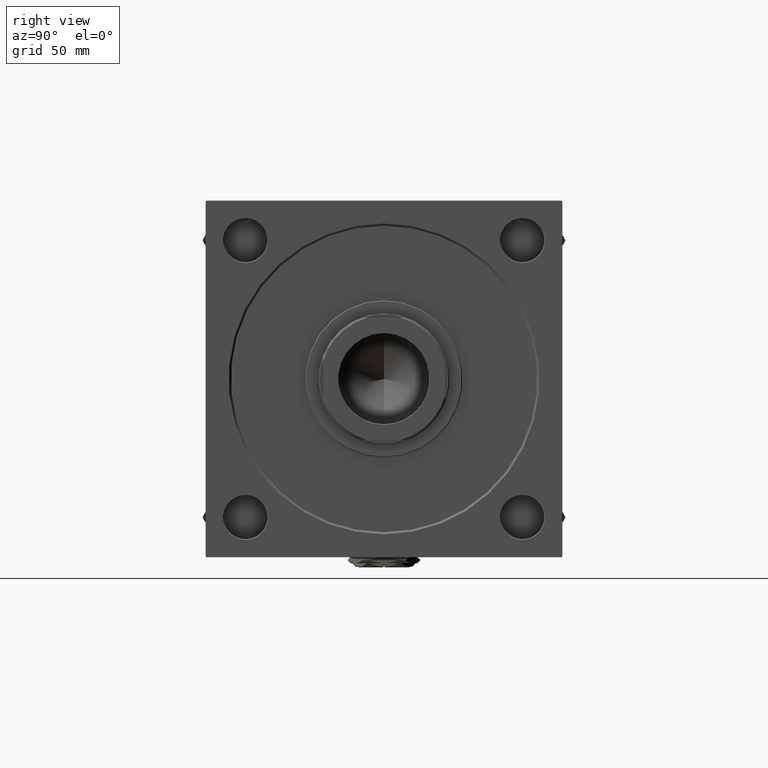
[diagram: clean part render]
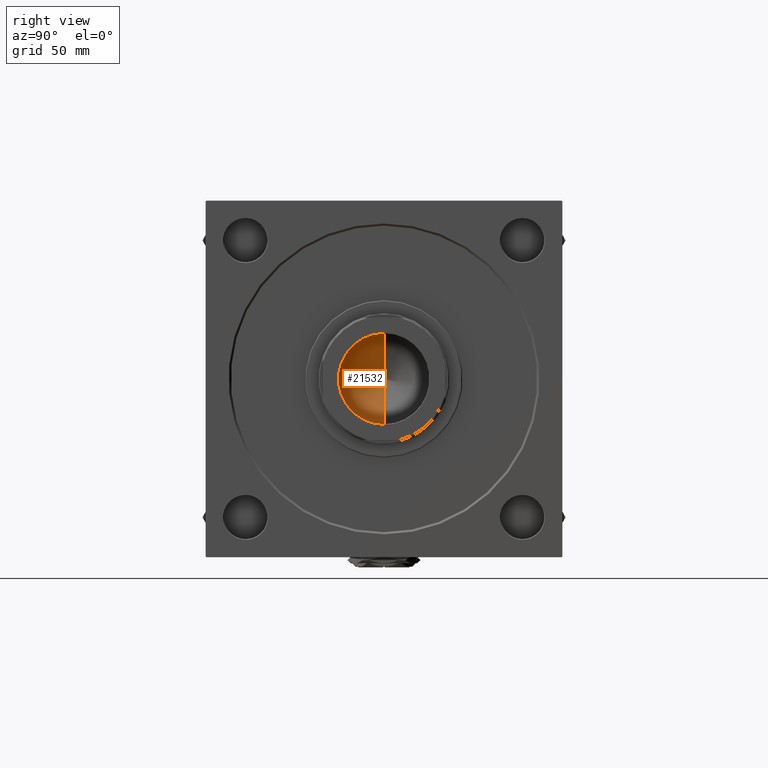
[diagram: same view with one face highlighted and labeled with its STEP entity id]
A machine part, right view. The second image highlights one B-rep face of the part: STEP entity #21532.
In plain terms, the highlighted conical surface has half-angle 59 deg.
Its self-contained STEP definition (entity closure, byte-faithful):
#1337 = CIRCLE ( 'NONE', #30146, 31.24999999999998579 ) ;
#1542 = DIRECTION ( 'NONE',  ( 0.8571673007021118895, 0.000000000000000000, 0.5150380749100549327 ) ) ;
#2824 = VERTEX_POINT ( 'NONE', #48936 ) ;
#4475 = VECTOR ( 'NONE', #12048, 1000.000000000000000 ) ;
#5365 = EDGE_CURVE ( 'NONE', #2824, #46428, #7535, .T. ) ;
#7168 = DIRECTION ( 'NONE',  ( -0.000000000000000000, -0.000000000000000000, 1.000000000000000000 ) ) ;
#7535 = LINE ( 'NONE', #48181, #4475 ) ;
#11805 = EDGE_LOOP ( 'NONE', ( #22063, #42341, #26395 ) ) ;
#12048 = DIRECTION ( 'NONE',  ( -0.8571673007021118895, 1.049727191138618079E-16, 0.5150380749100549327 ) ) ;
#15146 = FACE_OUTER_BOUND ( 'NONE', #11805, .T. ) ;
#17737 = CARTESIAN_POINT ( 'NONE',  ( 31.24999999999998579, 0.000000000000000000, 155.0000000000000000 ) ) ;
#21532 = ADVANCED_FACE ( 'NONE', ( #15146 ), #34632, .F. ) ;
#21676 = EDGE_CURVE ( 'NONE', #2824, #41871, #37166, .T. ) ;
#22063 = ORIENTED_EDGE ( 'NONE', *, *, #5365, .F. ) ;
#23378 = DIRECTION ( 'NONE',  ( 1.000000000000000000, 0.000000000000000000, 0.000000000000000000 ) ) ;
#26395 = ORIENTED_EDGE ( 'NONE', *, *, #39772, .T. ) ;
#27360 = CARTESIAN_POINT ( 'NONE',  ( 0.000000000000000000, 0.000000000000000000, 155.0000000000000000 ) ) ;
#27365 = CARTESIAN_POINT ( 'NONE',  ( 31.24999999999998579, 0.000000000000000000, 155.0000000000000000 ) ) ;
#30146 = AXIS2_PLACEMENT_3D ( 'NONE', #35077, #51030, #47570 ) ;
#30647 = CARTESIAN_POINT ( 'NONE',  ( -31.24999999999998579, 3.827021247335477324E-15, 155.0000000000000000 ) ) ;
#34632 = CONICAL_SURFACE ( 'NONE', #44840, 31.24999999999998579, 1.029744258676653645 ) ;
#35077 = CARTESIAN_POINT ( 'NONE',  ( 0.000000000000000000, 0.000000000000000000, 155.0000000000000000 ) ) ;
#37166 = LINE ( 'NONE', #17737, #42277 ) ;
#39772 = EDGE_CURVE ( 'NONE', #41871, #46428, #1337, .T. ) ;
#41871 = VERTEX_POINT ( 'NONE', #27365 ) ;
#42277 = VECTOR ( 'NONE', #1542, 1000.000000000000000 ) ;
#42341 = ORIENTED_EDGE ( 'NONE', *, *, #21676, .T. ) ;
#44840 = AXIS2_PLACEMENT_3D ( 'NONE', #27360, #7168, #23378 ) ;
#46428 = VERTEX_POINT ( 'NONE', #30647 ) ;
#47570 = DIRECTION ( 'NONE',  ( 1.000000000000000000, 0.000000000000000000, 0.000000000000000000 ) ) ;
#48181 = CARTESIAN_POINT ( 'NONE',  ( -31.24999999999998579, 3.827021247335477324E-15, 155.0000000000000000 ) ) ;
#48936 = CARTESIAN_POINT ( 'NONE',  ( -2.711685673800832818E-14, 0.000000000000000000, 136.2231056553887356 ) ) ;
#51030 = DIRECTION ( 'NONE',  ( -0.000000000000000000, -0.000000000000000000, 1.000000000000000000 ) ) ;